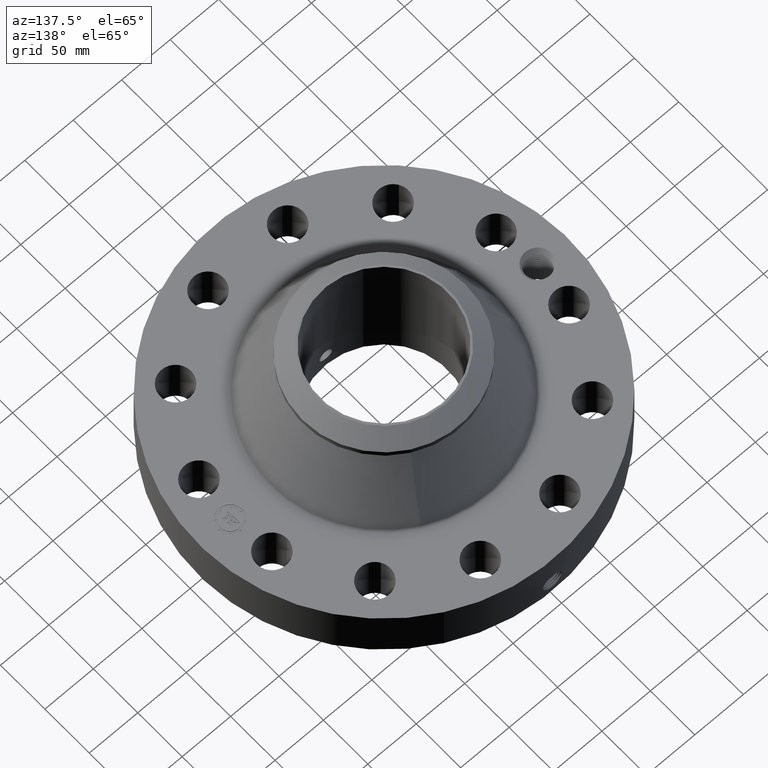
[diagram: clean part render]
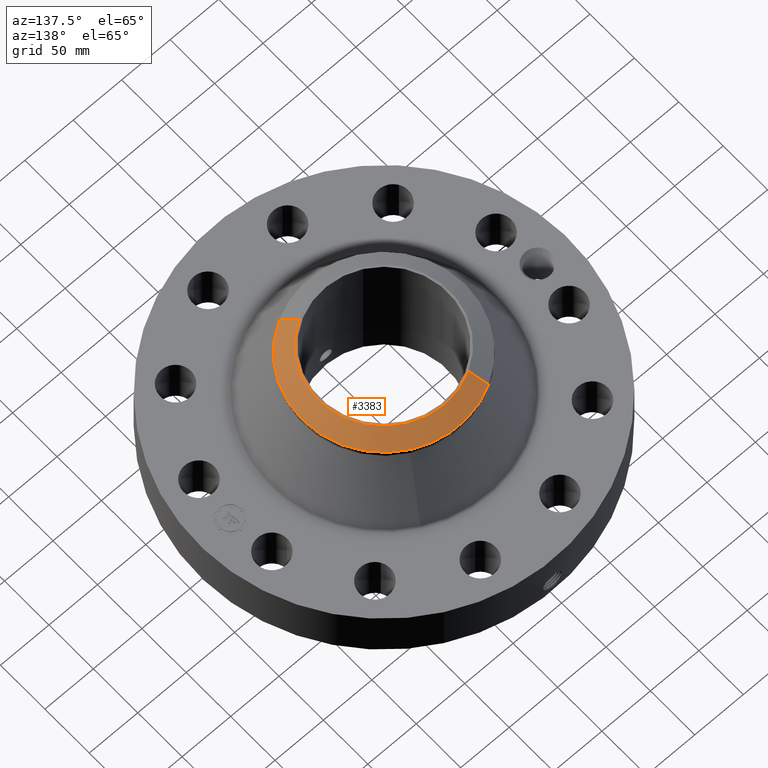
[diagram: same view with one face highlighted and labeled with its STEP entity id]
A machine part, auxiliary view. The second image highlights one B-rep face of the part: STEP entity #3383.
In plain terms, the highlighted conical surface has half-angle 52.5 deg.
Its self-contained STEP definition (entity closure, byte-faithful):
#2520=AXIS2_PLACEMENT_3D('Circle Axis2P3D',#2518,#2519,$) ;
#3328=AXIS2_PLACEMENT_3D('Cone Axis2P3D',#3325,#3326,#3327) ;
#3366=AXIS2_PLACEMENT_3D('Circle Axis2P3D',#3364,#3365,$) ;
#3373=AXIS2_PLACEMENT_3D('Circle Axis2P3D',#3371,#3372,$) ;
#2518=CARTESIAN_POINT('Axis2P3D Location',(0.,0.,5.75000000002)) ;
#2522=CARTESIAN_POINT('Vertex',(1.28114017678,-2.3451113634,5.75000000002)) ;
#2524=CARTESIAN_POINT('Vertex',(-1.28114017678,2.3451113634,5.75000000002)) ;
#3325=CARTESIAN_POINT('Axis2P3D Location',(0.,0.,5.75000000002)) ;
#3330=CARTESIAN_POINT('Line Origine',(1.43521791863,-2.62714877804,5.50339651304)) ;
#3334=CARTESIAN_POINT('Vertex',(1.58929566048,-2.90918619268,5.25679302607)) ;
#3337=CARTESIAN_POINT('Line Origine',(-1.43521791863,2.62714877804,5.50339651304)) ;
#3341=CARTESIAN_POINT('Vertex',(-1.58929566048,2.90918619268,5.25679302607)) ;
#3364=CARTESIAN_POINT('Axis2P3D Location',(0.,0.,5.25679302607)) ;
#3368=CARTESIAN_POINT('Vertex',(1.58929566048,2.90918619268,5.25679302607)) ;
#3371=CARTESIAN_POINT('Axis2P3D Location',(0.,0.,5.25679302607)) ;
#2519=DIRECTION('Axis2P3D Direction',(0.,0.,-0.0393700787402)) ;
#3326=DIRECTION('Axis2P3D Direction',(-0.,-0.,-0.0393700787402)) ;
#3327=DIRECTION('Axis2P3D XDirection',(-0.0188750212049,0.0345504945626,0.)) ;
#3331=DIRECTION('Vector Direction',(0.014974561121,-0.02741075027,-0.023966985394)) ;
#3338=DIRECTION('Vector Direction',(-0.014974561121,0.02741075027,-0.023966985394)) ;
#3365=DIRECTION('Axis2P3D Direction',(0.,0.,-0.0393700787402)) ;
#3372=DIRECTION('Axis2P3D Direction',(0.,0.,-0.0393700787402)) ;
#3332=VECTOR('Line Direction',#3331,0.0393700787402) ;
#3339=VECTOR('Line Direction',#3338,0.0393700787402) ;
#3377=ORIENTED_EDGE('',*,*,#3343,.F.) ;
#3378=ORIENTED_EDGE('',*,*,#2526,.F.) ;
#3379=ORIENTED_EDGE('',*,*,#3336,.T.) ;
#3380=ORIENTED_EDGE('',*,*,#3370,.T.) ;
#3381=ORIENTED_EDGE('',*,*,#3375,.F.) ;
#3383=ADVANCED_FACE('PartBody',(#3382),#3329,.T.) ;
#2521=CIRCLE('generated circle',#2520,2.67224015749) ;
#3367=CIRCLE('generated circle',#3366,3.31500000001) ;
#3374=CIRCLE('generated circle',#3373,3.31500000001) ;
#3329=CONICAL_SURFACE('Cone',#3328,2.67224015749,0.916297857297) ;
#2526=EDGE_CURVE('',#2523,#2525,#2521,.F.) ;
#3336=EDGE_CURVE('',#2523,#3335,#3333,.T.) ;
#3343=EDGE_CURVE('',#2525,#3342,#3340,.T.) ;
#3370=EDGE_CURVE('',#3335,#3369,#3367,.F.) ;
#3375=EDGE_CURVE('',#3342,#3369,#3374,.T.) ;
#3376=EDGE_LOOP('',(#3377,#3378,#3379,#3380,#3381)) ;
#3382=FACE_OUTER_BOUND('',#3376,.T.) ;
#3333=LINE('Line',#3330,#3332) ;
#3340=LINE('Line',#3337,#3339) ;
#2523=VERTEX_POINT('',#2522) ;
#2525=VERTEX_POINT('',#2524) ;
#3335=VERTEX_POINT('',#3334) ;
#3342=VERTEX_POINT('',#3341) ;
#3369=VERTEX_POINT('',#3368) ;